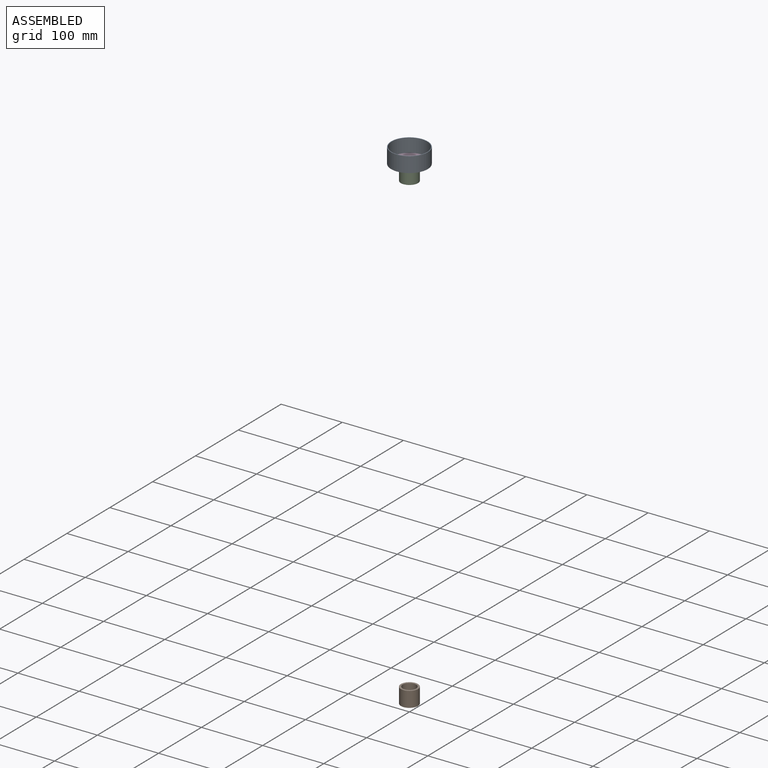
[diagram: assembled view]
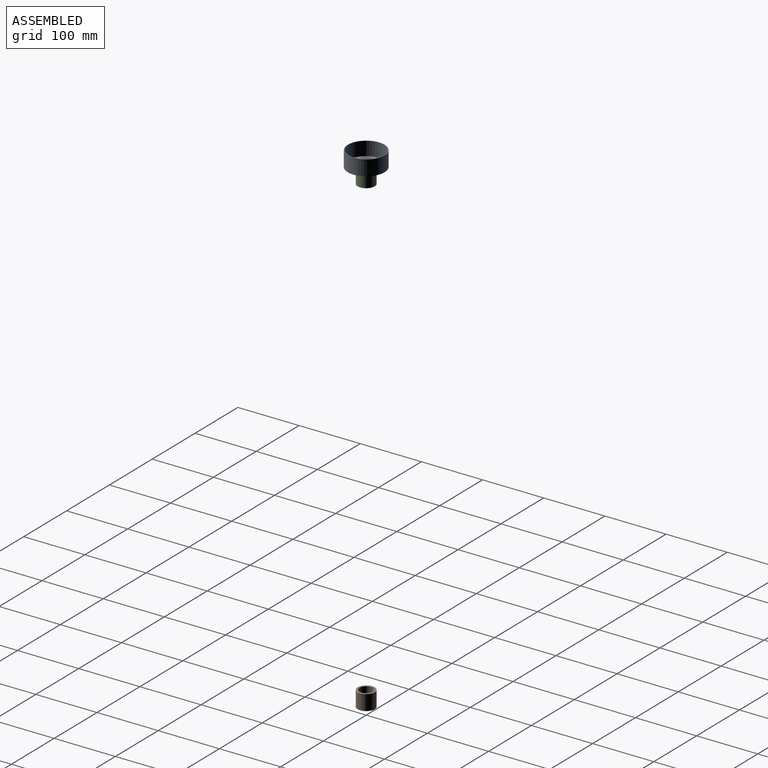
[diagram: assembled view, second angle]
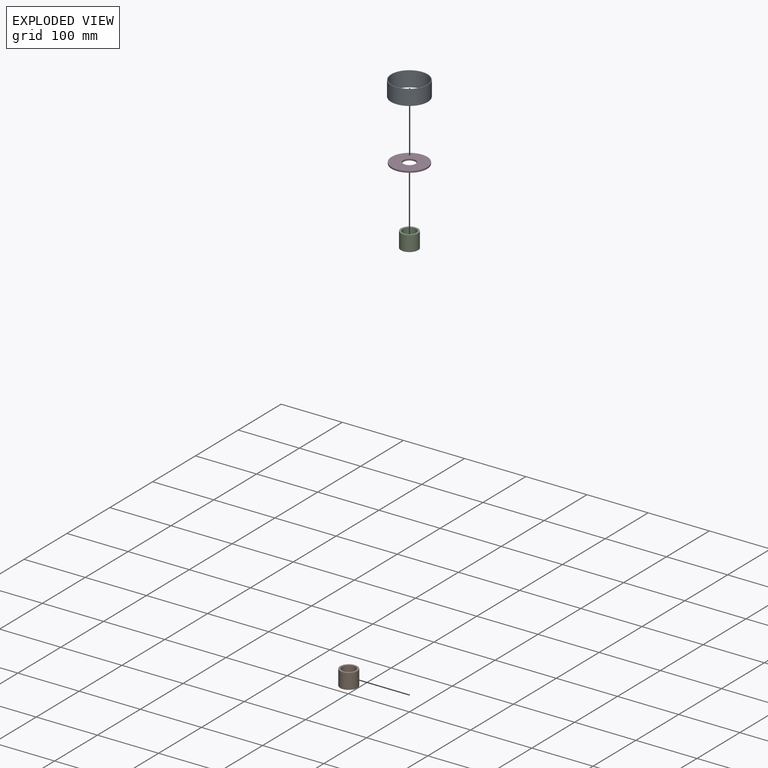
[diagram: exploded view]
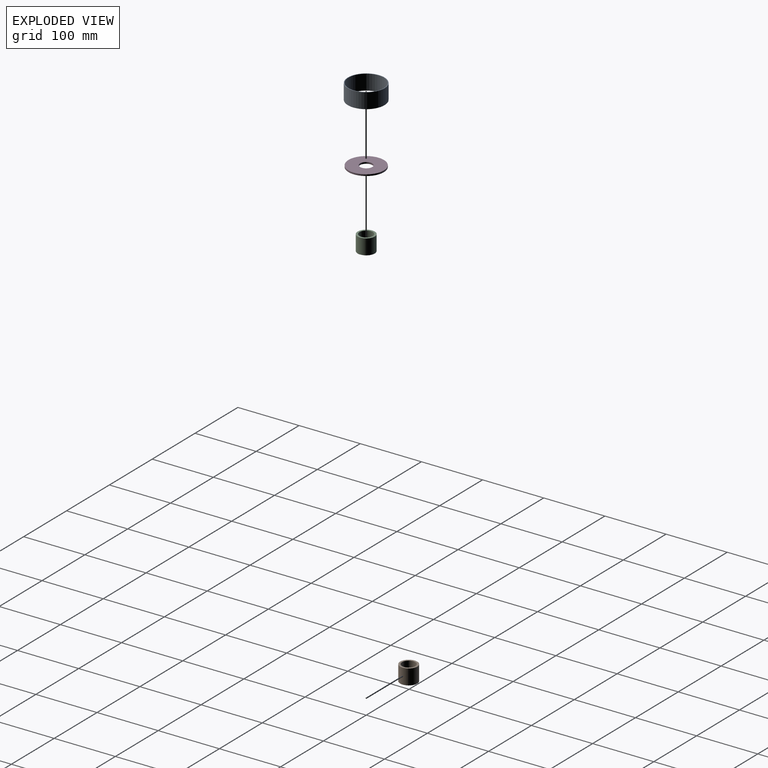
[diagram: exploded view, second angle]
ASSEMBLY  parts=4 mates=2
PART A: 4 faces, bbox 60x60x25 mm
  f0: cylinder r=29mm len=58mm, axis (0,0,-1), area 4555.3mm2, adj f2,f3
  f1: cylinder r=30mm len=60mm, axis (0,0,-1), area 4712.4mm2, adj f2,f3
  f2: plane 60x60mm, normal (0,0,1), area 185.4mm2, adj f0,f1
  f3: plane 60x60mm, normal (0,0,-1), area 185.4mm2, adj f0,f1
PART B: 4 faces, bbox 28x28x25 mm
  f0: cylinder r=11mm len=25mm, axis (0,0,-1), area 1727.9mm2, adj f2,f3
  f1: cylinder r=14mm len=28mm, axis (0,0,-1), area 2199.1mm2, adj f2,f3
  f2: plane 28x28mm, normal (0,0,1), area 235.6mm2, adj f0,f1
  f3: plane 28x28mm, normal (0,0,-1), area 235.6mm2, adj f0,f1
PART C: same geometry as B
PART D: 4 faces, bbox 58x58x2.5 mm
  f0: cylinder r=10mm len=20mm, axis (0,0,-1), area 157.1mm2, adj f2,f3
  f1: cylinder r=29mm len=58mm, axis (0,0,-1), area 455.5mm2, adj f2,f3
  f2: plane 58x58mm, normal (0,0,1), area 2327.9mm2, adj f0,f1
  f3: plane 58x58mm, normal (0,0,-1), area 2327.9mm2, adj f0,f1
PLACE A at identity
PLACE B t=(0,0,-797.5)mm
PLACE C t=(0,0,-25)mm
PLACE D at identity fixed
MATE fastened D.f1 <-> C.f1  axis (0,0,-1) through (0,0,0)mm
MATE fastened D.f1 <-> A.f0  axis (0,0,-1) through (0,0,0)mm
